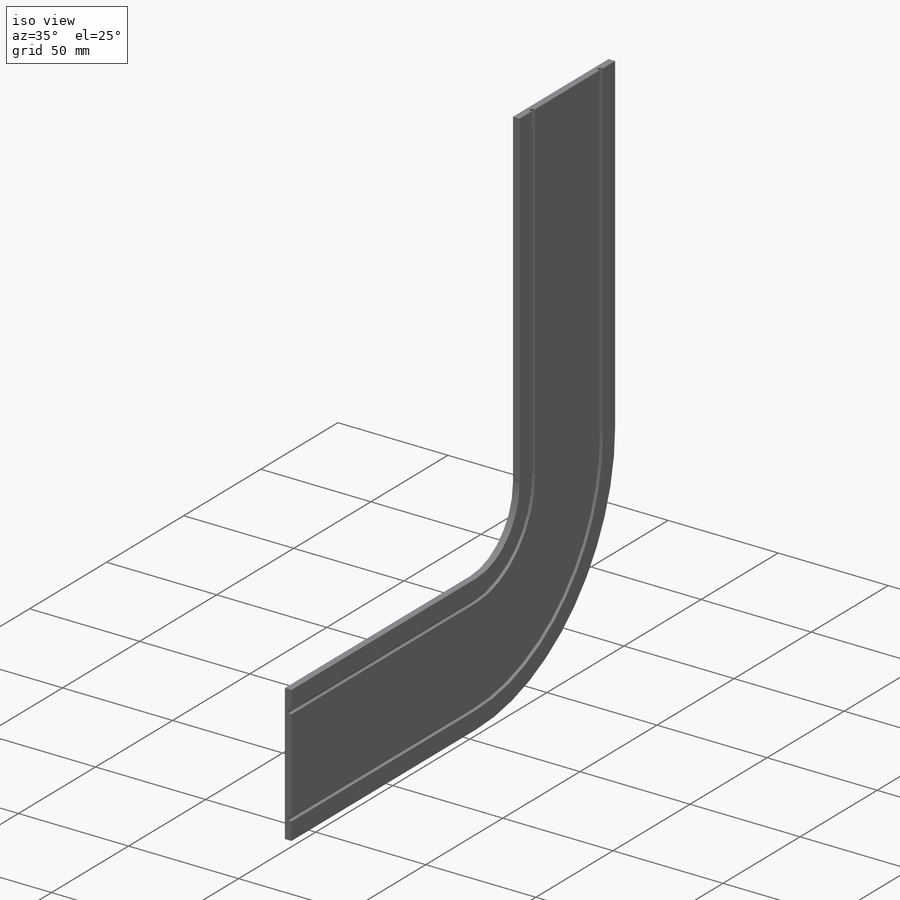
[diagram: iso view]
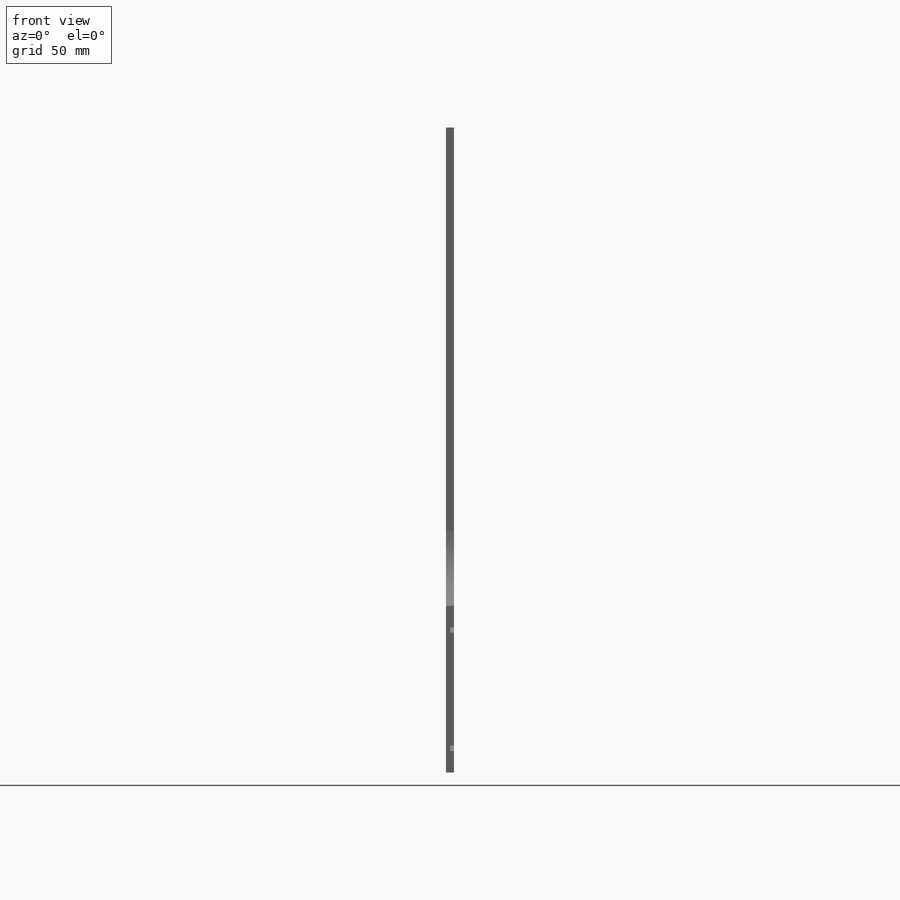
[diagram: front view]
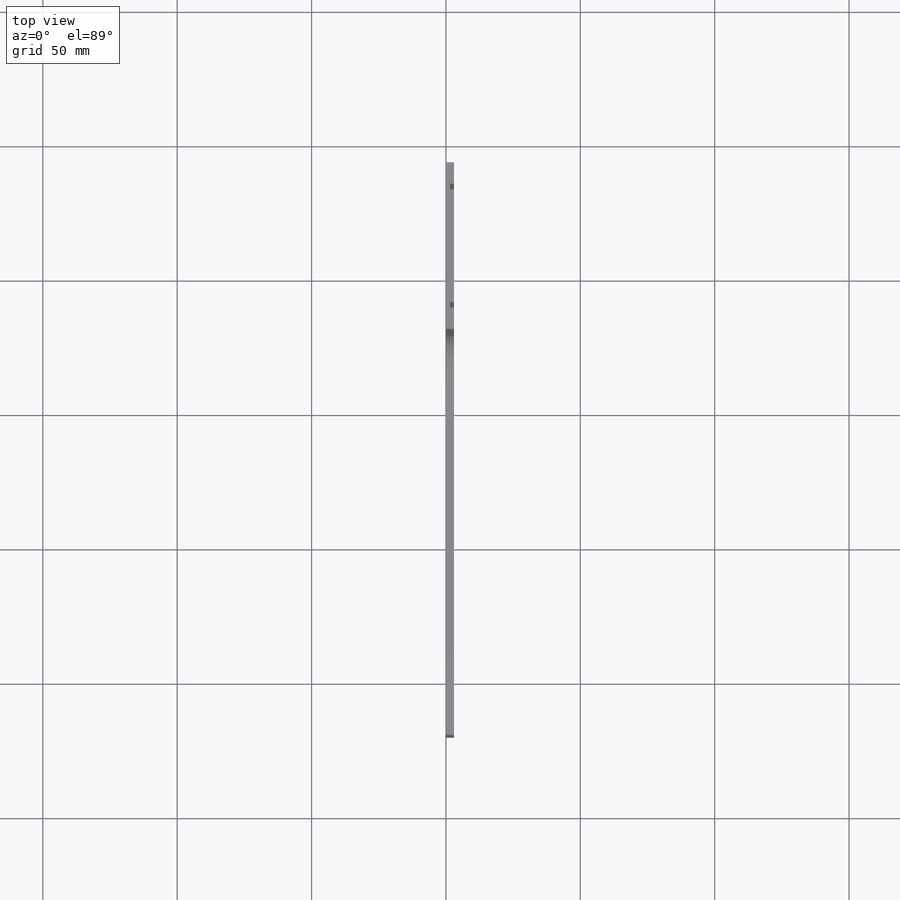
[diagram: top view]
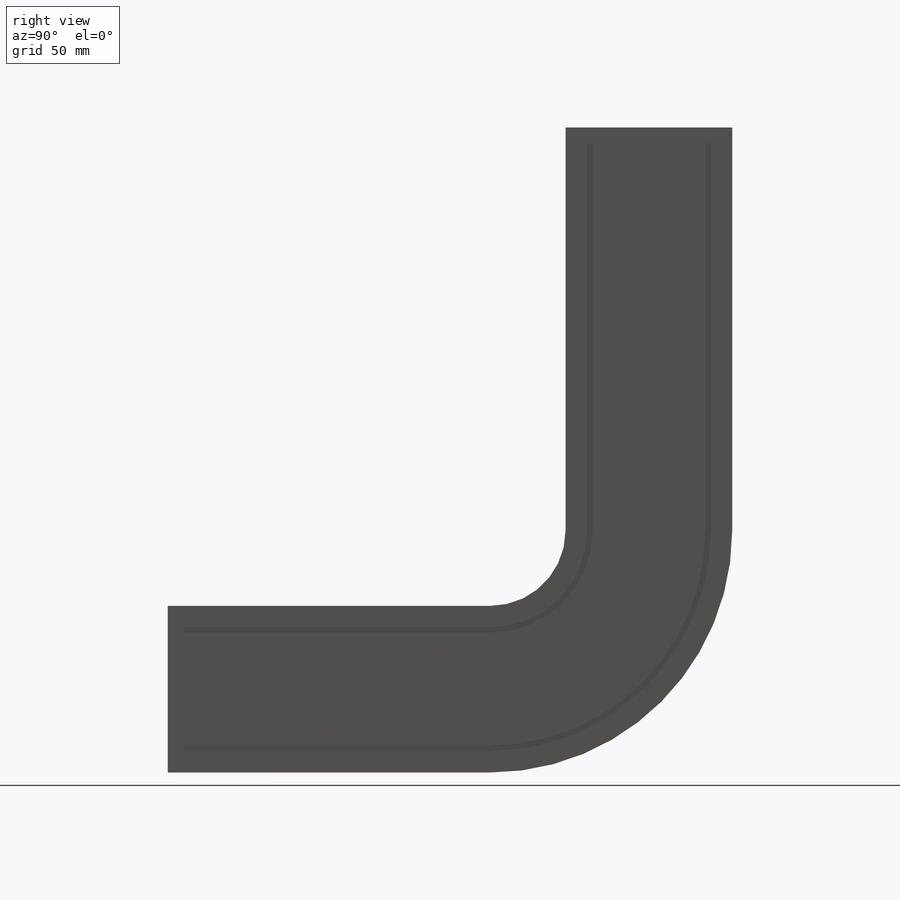
[diagram: right view]
SOLIDWORKS PART (.sldprt)
format: sldprt  version: not decoded by parser v0  size: 222,720 bytes
history: native  units: mm
features: sketch x5, cut_extrude x3, extrude x2, material x1, fillet x1 (+13 scaffold rows collapsed)
feature tree (25):
  scaffold x13  (default folders/planes/origin — collapsed)
  material  "Material <not specified>"
  sketch  "Sketch1"  dims[D1=180.0mm D2=72.0mm D3=120.0mm D4=150.0mm]
  extrude  "Boss-Extrude1"  Depth=3mm
  sketch  "Sketch2"  dims[c1.D1=~38.272412mm c1.D2=80.0mm c2.D1=42.0mm c2.D3=2.0mm c2.D4=2.0mm]
  cut_extrude  "Cut-Extrude1"  Depth=1.5mm
  sketch  "Sketch3"  dims[c1.D1=30.0mm c1.D3=30.0mm c1.D2=15.0mm c2.D3=10.0mm]
  extrude  "Boss-Extrude2"  Depth=3mm
  fillet  "Fillet1"  Radius=10mm
  sketch  "Sketch4"  dims[D1=5.4mm]
  cut_extrude  "Cut-Extrude2"  [1 undecoded]
  sketch  "Sketch5"  dims[D2=60.0mm D1=51.0mm]
  cut_extrude  "Cut-Extrude3"  [1 undecoded]
decode coverage: 9 of 11 modeling features carry decoded parameters
note: ~ marks probable driven/reference dimensions
note: 2 parameter values undecoded
note: suppression state not decoded; provenance and decode notes live in map.json
